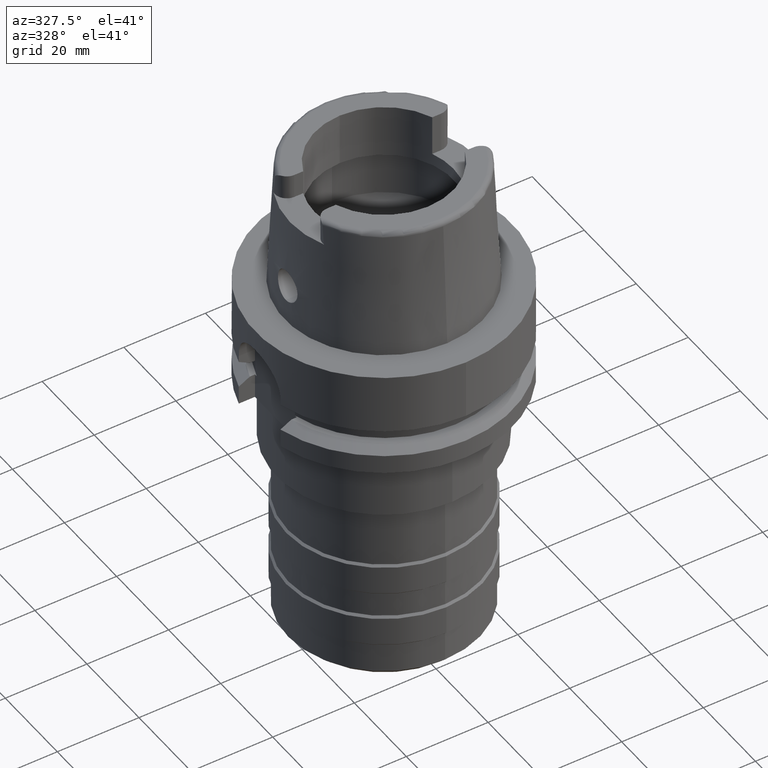
[diagram: clean part render]
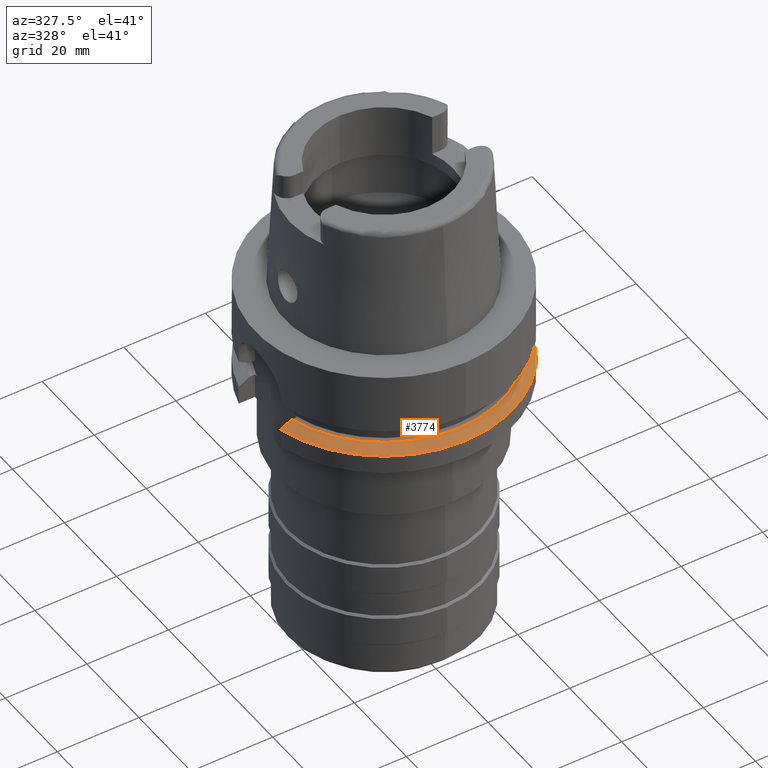
[diagram: same view with one face highlighted and labeled with its STEP entity id]
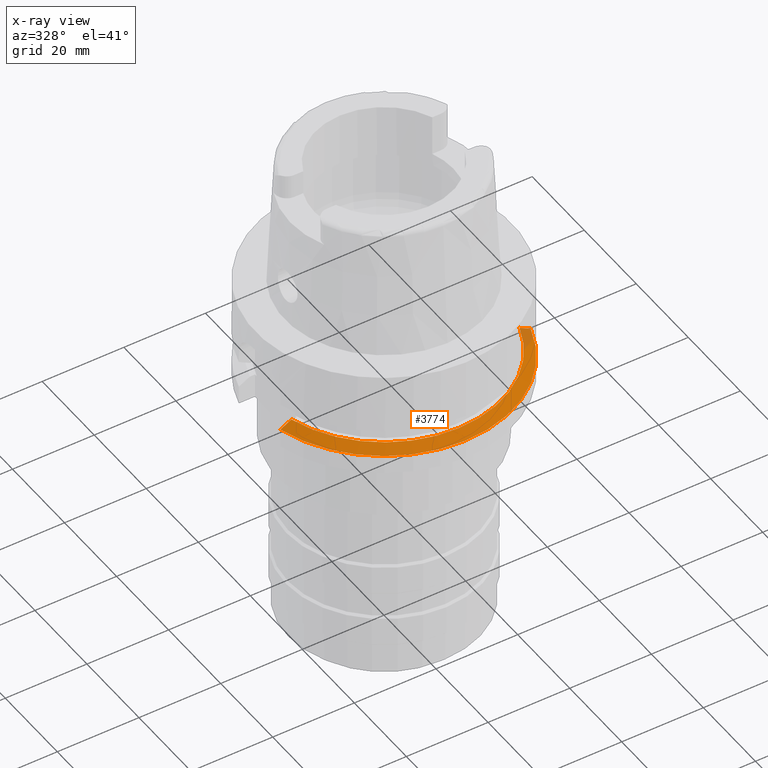
[diagram: x-ray of the same camera — body ghosted, the highlighted face saturated]
A machine part, auxiliary view. The second image highlights one B-rep face of the part: STEP entity #3774.
The next image is the same camera in x-ray: the body ghosted, the highlighted face saturated — about 4% of this face is hidden behind the body in this view.
In plain terms, the highlighted conical surface has half-angle 60 deg.
Its self-contained STEP definition (entity closure, byte-faithful):
#1239=CARTESIAN_POINT('',(0.E0,0.E0,-1.9875E1));
#1240=DIRECTION('',(0.E0,0.E0,-1.E0));
#1241=DIRECTION('',(9.502643111725E-1,-3.114446000686E-1,0.E0));
#1242=AXIS2_PLACEMENT_3D('',#1239,#1240,#1241);
#1247=CARTESIAN_POINT('',(0.E0,0.E0,-1.9875E1));
#1248=DIRECTION('',(0.E0,0.E0,-1.E0));
#1249=DIRECTION('',(0.E0,-1.E0,0.E0));
#1250=AXIS2_PLACEMENT_3D('',#1247,#1248,#1249);
#1269=CARTESIAN_POINT('',(-3.046719549993E1,-7.999999898047E0,
-2.137749814925E1));
#1270=CARTESIAN_POINT('',(-3.016036583614E1,-7.999999898047E0,
-2.120615819637E1));
#1271=CARTESIAN_POINT('',(-2.955133560244E1,-7.999999980560E0,
-2.086639781435E1));
#1272=CARTESIAN_POINT('',(-2.865166888465E1,-8.000000220970E0,
-2.036555096874E1));
#1273=CARTESIAN_POINT('',(-2.806112789E1,-7.999999497363E0,-2.003752695189E1));
#1274=CARTESIAN_POINT('',(-2.776817315157E1,-7.999999497363E0,-1.9875E1));
#1279=CARTESIAN_POINT('',(2.746035048663E1,-9.000000214438E0,-1.9875E1));
#1280=CARTESIAN_POINT('',(2.775570404391E1,-9.000000214438E0,
-2.003704140276E1));
#1281=CARTESIAN_POINT('',(2.835146361325E1,-8.999999992285E0,
-2.036440164235E1));
#1282=CARTESIAN_POINT('',(2.926031080200E1,-8.999999705345E0,
-2.086525243537E1));
#1283=CARTESIAN_POINT('',(2.987635040174E1,-9.000000692671E0,
-2.120567307068E1));
#1284=CARTESIAN_POINT('',(3.018691748973E1,-9.000000692671E0,
-2.137750466140E1));
#1289=CARTESIAN_POINT('',(0.E0,0.E0,-2.137749907476E1));
#1290=DIRECTION('',(0.E0,0.E0,-1.E0));
#1291=DIRECTION('',(9.583148474999E-1,-2.857142857143E-1,0.E0));
#1292=AXIS2_PLACEMENT_3D('',#1289,#1290,#1291);
#1297=CARTESIAN_POINT('',(0.E0,0.E0,-2.137749907476E1));
#1298=DIRECTION('',(0.E0,0.E0,-1.E0));
#1299=DIRECTION('',(0.E0,-1.E0,0.E0));
#1300=AXIS2_PLACEMENT_3D('',#1297,#1298,#1299);
#2868=CARTESIAN_POINT('',(2.746035048663E1,-9.000000214438E0,-1.9875E1));
#2869=VERTEX_POINT('',#2868);
#2870=CARTESIAN_POINT('',(0.E0,-2.889759526419E1,-1.9875E1));
#2871=CARTESIAN_POINT('',(-2.776816544270E1,-8.E0,-1.9875E1));
#2872=VERTEX_POINT('',#2870);
#2873=VERTEX_POINT('',#2871);
#2908=CARTESIAN_POINT('',(-3.046719549993E1,-7.999999898047E0,
-2.137749814925E1));
#2909=VERTEX_POINT('',#2908);
#2910=CARTESIAN_POINT('',(3.018691769625E1,-9.E0,-2.137749907476E1));
#2911=CARTESIAN_POINT('',(0.E0,-3.15E1,-2.137749907476E1));
#2912=VERTEX_POINT('',#2910);
#2913=VERTEX_POINT('',#2911);
#3761=CARTESIAN_POINT('',(0.E0,0.E0,-2.062624953738E1));
#3762=DIRECTION('',(0.E0,0.E0,-1.E0));
#3763=DIRECTION('',(0.E0,-1.E0,0.E0));
#3764=AXIS2_PLACEMENT_3D('',#3761,#3762,#3763);
#3765=CONICAL_SURFACE('',#3764,3.019879763210E1,6.E1);
#3766=ORIENTED_EDGE('',*,*,#3721,.T.);
#3767=ORIENTED_EDGE('',*,*,#3741,.F.);
#3768=ORIENTED_EDGE('',*,*,#3739,.F.);
#3769=ORIENTED_EDGE('',*,*,#3687,.T.);
#3770=ORIENTED_EDGE('',*,*,#3704,.T.);
#3771=ORIENTED_EDGE('',*,*,#3702,.T.);
#3772=EDGE_LOOP('',(#3766,#3767,#3768,#3769,#3770,#3771));
#3773=FACE_OUTER_BOUND('',#3772,.F.);
#1243=CIRCLE('',#1242,2.889759526419E1);
#1251=CIRCLE('',#1250,2.889759526419E1);
#1275=B_SPLINE_CURVE_WITH_KNOTS('',3,(#1269,#1270,#1271,#1272,#1273,#1274),
.UNSPECIFIED.,.F.,.F.,(4,1,1,4),(0.E0,3.333333333333E-1,6.666666666667E-1,1.E0),
.UNSPECIFIED.);
#1285=B_SPLINE_CURVE_WITH_KNOTS('',3,(#1279,#1280,#1281,#1282,#1283,#1284),
.UNSPECIFIED.,.F.,.F.,(4,1,1,4),(0.E0,3.333333333333E-1,6.666666666667E-1,1.E0),
.UNSPECIFIED.);
#1293=CIRCLE('',#1292,3.15E1);
#1301=CIRCLE('',#1300,3.15E1);
#3687=EDGE_CURVE('',#2869,#2912,#1285,.T.);
#3702=EDGE_CURVE('',#2913,#2909,#1301,.T.);
#3704=EDGE_CURVE('',#2912,#2913,#1293,.T.);
#3721=EDGE_CURVE('',#2909,#2873,#1275,.T.);
#3739=EDGE_CURVE('',#2869,#2872,#1243,.T.);
#3741=EDGE_CURVE('',#2872,#2873,#1251,.T.);
#3774=ADVANCED_FACE('',(#3773),#3765,.T.);